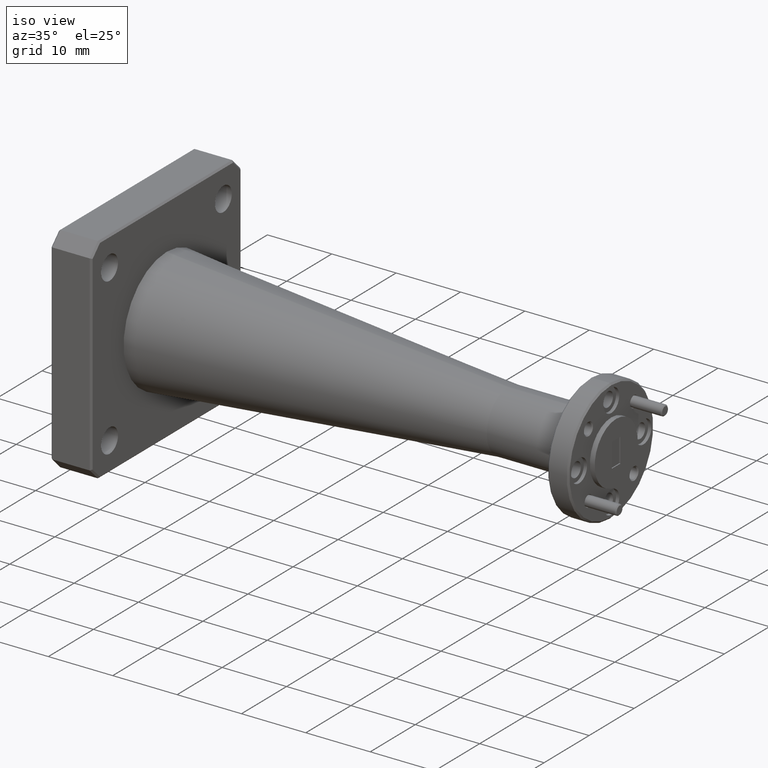
[diagram: clean part render]
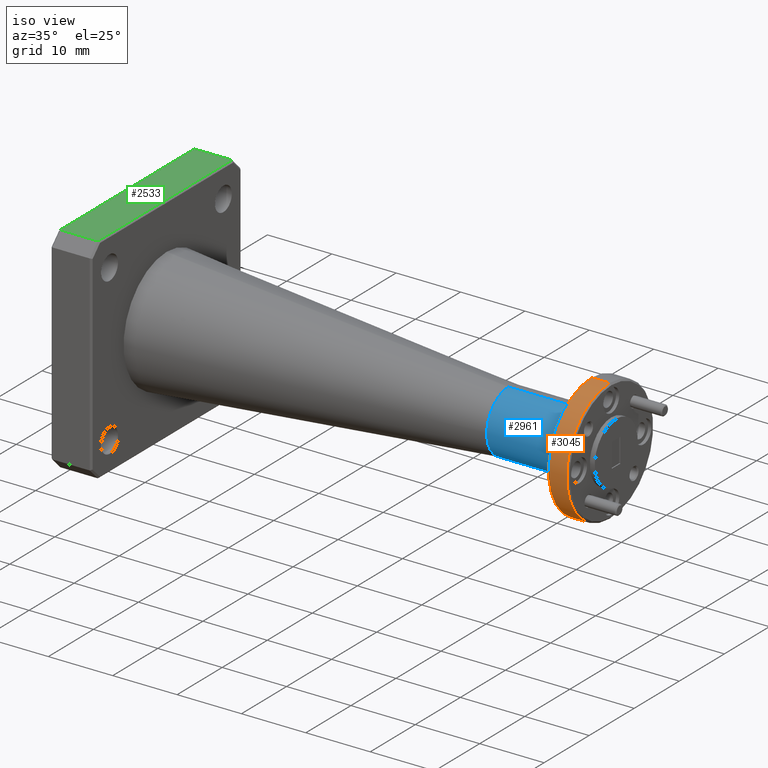
[diagram: same view with three faces highlighted in distinct colors, each labeled with its STEP entity id]
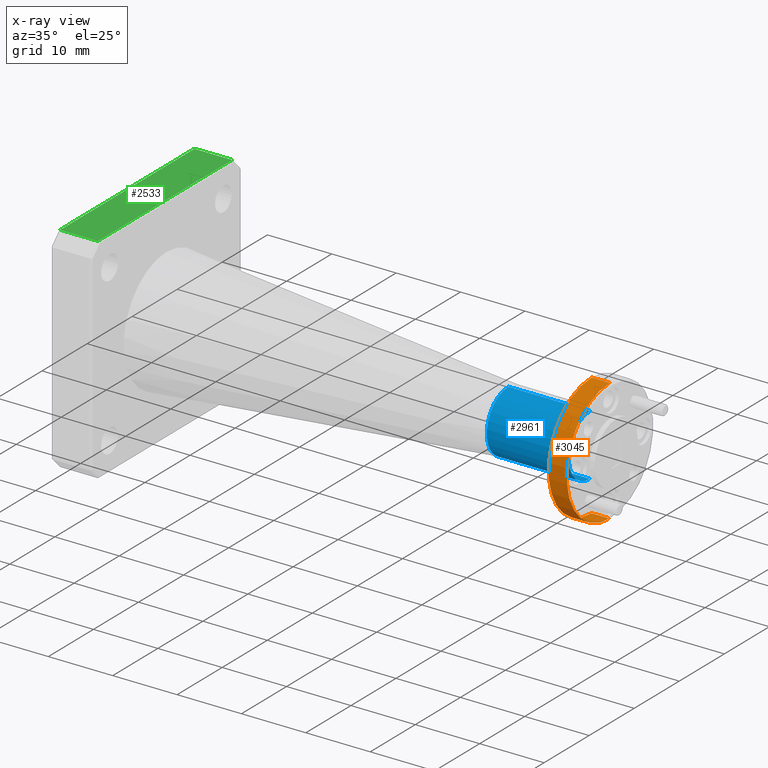
[diagram: x-ray of the same camera — body ghosted, the three highlighted faces saturated]
A machine part, iso view with three faces highlighted in distinct colors.
The next image is the same camera in x-ray (body ghosted, the three faces saturated) — at least one of them is partly hidden behind the body in this view.
Their STEP definitions:

[orange] entity #3045 — the highlighted cylindrical surface (partial cylindrical patch) has radius 9.525 mm, axis along (-1, -0, -0).
#15 = EDGE_CURVE ( 'NONE', #1796, #1491, #471, .T. ) ;
#25 = CARTESIAN_POINT ( 'NONE',  ( 0.0000000000000000000, 0.0000000000000000000, 0.0000000000000000000 ) ) ;
#35 = EDGE_CURVE ( 'NONE', #893, #1491, #706, .T. ) ;
#50 = ORIENTED_EDGE ( 'NONE', *, *, #1376, .T. ) ;
#70 = DIRECTION ( 'NONE',  ( 0.0000000000000000000, 0.0000000000000000000, 1.000000000000000000 ) ) ;
#411 = CARTESIAN_POINT ( 'NONE',  ( 2.959999999999999500, 4.592425496802579100E-017, -0.3750000000000003900 ) ) ;
#471 = LINE ( 'NONE', #1718, #2052 ) ;
#495 = CARTESIAN_POINT ( 'NONE',  ( 2.959999999999999500, 0.0000000000000000000, 0.3750000000000003900 ) ) ;
#582 = CARTESIAN_POINT ( 'NONE',  ( 0.0000000000000000000, 0.0000000000000000000, 0.3750000000000003900 ) ) ;
#680 = CARTESIAN_POINT ( 'NONE',  ( 2.850000000000001000, 0.0000000000000000000, 0.0000000000000000000 ) ) ;
#698 = EDGE_LOOP ( 'NONE', ( #2148, #2109, #50, #2040 ) ) ;
#706 = CIRCLE ( 'NONE', #1576, 0.3750000000000003900 ) ;
#861 = DIRECTION ( 'NONE',  ( -1.000000000000000000, -0.0000000000000000000, -0.0000000000000000000 ) ) ;
#893 = VERTEX_POINT ( 'NONE', #3055 ) ;
#948 = DIRECTION ( 'NONE',  ( 1.000000000000000000, 0.0000000000000000000, 0.0000000000000000000 ) ) ;
#1112 = CARTESIAN_POINT ( 'NONE',  ( 2.959999999999999500, 0.0000000000000000000, 0.0000000000000000000 ) ) ;
#1206 = DIRECTION ( 'NONE',  ( 0.0000000000000000000, 0.0000000000000000000, -1.000000000000000000 ) ) ;
#1218 = AXIS2_PLACEMENT_3D ( 'NONE', #1112, #861, #2355 ) ;
#1313 = VERTEX_POINT ( 'NONE', #495 ) ;
#1325 = FACE_OUTER_BOUND ( 'NONE', #698, .T. ) ;
#1376 = EDGE_CURVE ( 'NONE', #1313, #893, #2367, .T. ) ;
#1491 = VERTEX_POINT ( 'NONE', #1896 ) ;
#1576 = AXIS2_PLACEMENT_3D ( 'NONE', #680, #948, #1206 ) ;
#1708 = AXIS2_PLACEMENT_3D ( 'NONE', #25, #2555, #70 ) ;
#1718 = CARTESIAN_POINT ( 'NONE',  ( 0.0000000000000000000, 4.592425496802579100E-017, -0.3750000000000003900 ) ) ;
#1796 = VERTEX_POINT ( 'NONE', #411 ) ;
#1807 = DIRECTION ( 'NONE',  ( -1.000000000000000000, -0.0000000000000000000, -0.0000000000000000000 ) ) ;
#1896 = CARTESIAN_POINT ( 'NONE',  ( 2.850000000000001000, 4.592425496802579100E-017, -0.3750000000000003900 ) ) ;
#1899 = CIRCLE ( 'NONE', #1218, 0.3750000000000003900 ) ;
#1981 = DIRECTION ( 'NONE',  ( -1.000000000000000000, -0.0000000000000000000, -0.0000000000000000000 ) ) ;
#2040 = ORIENTED_EDGE ( 'NONE', *, *, #35, .T. ) ;
#2052 = VECTOR ( 'NONE', #1981, 39.37007874015748100 ) ;
#2066 = EDGE_CURVE ( 'NONE', #1796, #1313, #1899, .T. ) ;
#2109 = ORIENTED_EDGE ( 'NONE', *, *, #2066, .T. ) ;
#2134 = VECTOR ( 'NONE', #1807, 39.37007874015748100 ) ;
#2148 = ORIENTED_EDGE ( 'NONE', *, *, #15, .F. ) ;
#2355 = DIRECTION ( 'NONE',  ( 0.0000000000000000000, 0.0000000000000000000, 1.000000000000000000 ) ) ;
#2367 = LINE ( 'NONE', #582, #2134 ) ;
#2555 = DIRECTION ( 'NONE',  ( -1.000000000000000000, -0.0000000000000000000, -0.0000000000000000000 ) ) ;
#2607 = CYLINDRICAL_SURFACE ( 'NONE', #1708, 0.3750000000000003900 ) ;
#3045 = ADVANCED_FACE ( 'NONE', ( #1325 ), #2607, .T. ) ;
#3055 = CARTESIAN_POINT ( 'NONE',  ( 2.850000000000001000, 0.0000000000000000000, 0.3750000000000003900 ) ) ;

[blue] entity #2961 — the highlighted cylindrical surface (partial cylindrical patch) has radius 4.7625 mm, axis along (-1, -0, -0).
#77 = FACE_OUTER_BOUND ( 'NONE', #3185, .T. ) ;
#122 = LINE ( 'NONE', #1053, #1121 ) ;
#165 = CARTESIAN_POINT ( 'NONE',  ( 2.340000000000000300, 3.444319122601932800E-017, -0.1875000000000002800 ) ) ;
#237 = ORIENTED_EDGE ( 'NONE', *, *, #2495, .F. ) ;
#343 = CYLINDRICAL_SURFACE ( 'NONE', #353, 0.1875000000000002800 ) ;
#353 = AXIS2_PLACEMENT_3D ( 'NONE', #2931, #719, #1217 ) ;
#376 = CARTESIAN_POINT ( 'NONE',  ( 2.340000000000000300, 0.0000000000000000000, 0.0000000000000000000 ) ) ;
#423 = DIRECTION ( 'NONE',  ( -1.000000000000000000, -0.0000000000000000000, -0.0000000000000000000 ) ) ;
#601 = AXIS2_PLACEMENT_3D ( 'NONE', #376, #423, #2476 ) ;
#709 = DIRECTION ( 'NONE',  ( 0.0000000000000000000, 0.0000000000000000000, 1.000000000000000000 ) ) ;
#719 = DIRECTION ( 'NONE',  ( -1.000000000000000000, -0.0000000000000000000, -0.0000000000000000000 ) ) ;
#888 = DIRECTION ( 'NONE',  ( -1.000000000000000000, -0.0000000000000000000, -0.0000000000000000000 ) ) ;
#957 = CIRCLE ( 'NONE', #1345, 0.1875000000000002800 ) ;
#1053 = CARTESIAN_POINT ( 'NONE',  ( 0.0000000000000000000, 0.0000000000000000000, 0.1875000000000002800 ) ) ;
#1121 = VECTOR ( 'NONE', #2781, 39.37007874015748100 ) ;
#1133 = EDGE_CURVE ( 'NONE', #2313, #1255, #957, .T. ) ;
#1191 = LINE ( 'NONE', #1917, #3004 ) ;
#1217 = DIRECTION ( 'NONE',  ( 0.0000000000000000000, 0.0000000000000000000, 1.000000000000000000 ) ) ;
#1255 = VERTEX_POINT ( 'NONE', #1525 ) ;
#1337 = ORIENTED_EDGE ( 'NONE', *, *, #1133, .T. ) ;
#1345 = AXIS2_PLACEMENT_3D ( 'NONE', #1477, #2219, #709 ) ;
#1477 = CARTESIAN_POINT ( 'NONE',  ( 2.840000000000000300, 0.0000000000000000000, 0.0000000000000000000 ) ) ;
#1496 = CARTESIAN_POINT ( 'NONE',  ( 2.840000000000000300, 2.296212748401290800E-017, -0.1875000000000002800 ) ) ;
#1525 = CARTESIAN_POINT ( 'NONE',  ( 2.840000000000000300, 0.0000000000000000000, 0.1875000000000002800 ) ) ;
#1618 = VERTEX_POINT ( 'NONE', #165 ) ;
#1626 = ORIENTED_EDGE ( 'NONE', *, *, #2143, .F. ) ;
#1917 = CARTESIAN_POINT ( 'NONE',  ( 0.0000000000000000000, 2.296212748401290800E-017, -0.1875000000000002800 ) ) ;
#2143 = EDGE_CURVE ( 'NONE', #2313, #1618, #1191, .T. ) ;
#2154 = CARTESIAN_POINT ( 'NONE',  ( 2.340000000000000300, 0.0000000000000000000, 0.1875000000000002800 ) ) ;
#2219 = DIRECTION ( 'NONE',  ( -1.000000000000000000, -0.0000000000000000000, -0.0000000000000000000 ) ) ;
#2313 = VERTEX_POINT ( 'NONE', #1496 ) ;
#2419 = ORIENTED_EDGE ( 'NONE', *, *, #2787, .T. ) ;
#2476 = DIRECTION ( 'NONE',  ( 0.0000000000000000000, 0.0000000000000000000, 1.000000000000000000 ) ) ;
#2495 = EDGE_CURVE ( 'NONE', #1618, #2667, #3124, .T. ) ;
#2667 = VERTEX_POINT ( 'NONE', #2154 ) ;
#2781 = DIRECTION ( 'NONE',  ( -1.000000000000000000, -0.0000000000000000000, -0.0000000000000000000 ) ) ;
#2787 = EDGE_CURVE ( 'NONE', #1255, #2667, #122, .T. ) ;
#2931 = CARTESIAN_POINT ( 'NONE',  ( 0.0000000000000000000, 0.0000000000000000000, 0.0000000000000000000 ) ) ;
#2961 = ADVANCED_FACE ( 'NONE', ( #77 ), #343, .T. ) ;
#3004 = VECTOR ( 'NONE', #888, 39.37007874015748100 ) ;
#3124 = CIRCLE ( 'NONE', #601, 0.1875000000000002800 ) ;
#3185 = EDGE_LOOP ( 'NONE', ( #1626, #1337, #2419, #237 ) ) ;

[green] entity #2533 — the highlighted planar face has unit normal (0, 0, 1).
#33 = DIRECTION ( 'NONE',  ( 1.000000000000000000, 0.0000000000000000000, -0.0000000000000000000 ) ) ;
#130 = EDGE_LOOP ( 'NONE', ( #2614, #2763, #983, #199 ) ) ;
#178 = DIRECTION ( 'NONE',  ( 0.0000000000000000000, -1.000000000000000000, 0.0000000000000000000 ) ) ;
#199 = ORIENTED_EDGE ( 'NONE', *, *, #2754, .T. ) ;
#223 = LINE ( 'NONE', #881, #2914 ) ;
#232 = CARTESIAN_POINT ( 'NONE',  ( 3.463800320492858500, -0.6560000000000000300, 0.6560000000000000300 ) ) ;
#282 = CARTESIAN_POINT ( 'NONE',  ( 3.463800320492858500, -0.5859999999999999700, 0.6560000000000000300 ) ) ;
#357 = VERTEX_POINT ( 'NONE', #1332 ) ;
#475 = AXIS2_PLACEMENT_3D ( 'NONE', #232, #2464, #33 ) ;
#571 = CARTESIAN_POINT ( 'NONE',  ( 0.2399999999999996300, 0.5860000000000005200, 0.6560000000000000300 ) ) ;
#723 = CARTESIAN_POINT ( 'NONE',  ( 0.01000000000000071300, 0.5860000000000005200, 0.6560000000000000300 ) ) ;
#881 = CARTESIAN_POINT ( 'NONE',  ( 0.01000000000000071500, -0.5859999999999999700, 0.6560000000000000300 ) ) ;
#983 = ORIENTED_EDGE ( 'NONE', *, *, #2967, .T. ) ;
#1086 = VERTEX_POINT ( 'NONE', #1441 ) ;
#1162 = VECTOR ( 'NONE', #2548, 39.37007874015748100 ) ;
#1332 = CARTESIAN_POINT ( 'NONE',  ( 0.01000000000000071300, -0.5859999999999999700, 0.6560000000000000300 ) ) ;
#1377 = VERTEX_POINT ( 'NONE', #1591 ) ;
#1408 = LINE ( 'NONE', #282, #1162 ) ;
#1413 = DIRECTION ( 'NONE',  ( -1.000000000000000000, 0.0000000000000000000, 0.0000000000000000000 ) ) ;
#1441 = CARTESIAN_POINT ( 'NONE',  ( 0.2399999999999996300, -0.5859999999999999700, 0.6560000000000000300 ) ) ;
#1591 = CARTESIAN_POINT ( 'NONE',  ( 0.2399999999999996300, 0.5860000000000005200, 0.6560000000000000300 ) ) ;
#1750 = VECTOR ( 'NONE', #1413, 39.37007874015748100 ) ;
#1870 = EDGE_CURVE ( 'NONE', #1377, #2395, #2480, .T. ) ;
#2077 = DIRECTION ( 'NONE',  ( 0.0000000000000000000, 1.000000000000000000, 0.0000000000000000000 ) ) ;
#2150 = FACE_OUTER_BOUND ( 'NONE', #130, .T. ) ;
#2302 = VECTOR ( 'NONE', #2077, 39.37007874015748100 ) ;
#2395 = VERTEX_POINT ( 'NONE', #723 ) ;
#2464 = DIRECTION ( 'NONE',  ( 0.0000000000000000000, 0.0000000000000000000, 1.000000000000000000 ) ) ;
#2480 = LINE ( 'NONE', #2890, #1750 ) ;
#2533 = ADVANCED_FACE ( 'NONE', ( #2150 ), #2730, .T. ) ;
#2548 = DIRECTION ( 'NONE',  ( 1.000000000000000000, 0.0000000000000000000, 0.0000000000000000000 ) ) ;
#2614 = ORIENTED_EDGE ( 'NONE', *, *, #1870, .T. ) ;
#2730 = PLANE ( 'NONE',  #475 ) ;
#2754 = EDGE_CURVE ( 'NONE', #1086, #1377, #2951, .T. ) ;
#2763 = ORIENTED_EDGE ( 'NONE', *, *, #2909, .T. ) ;
#2890 = CARTESIAN_POINT ( 'NONE',  ( 3.463800320492858500, 0.5860000000000005200, 0.6560000000000000300 ) ) ;
#2909 = EDGE_CURVE ( 'NONE', #2395, #357, #223, .T. ) ;
#2914 = VECTOR ( 'NONE', #178, 39.37007874015748100 ) ;
#2951 = LINE ( 'NONE', #571, #2302 ) ;
#2967 = EDGE_CURVE ( 'NONE', #357, #1086, #1408, .T. ) ;